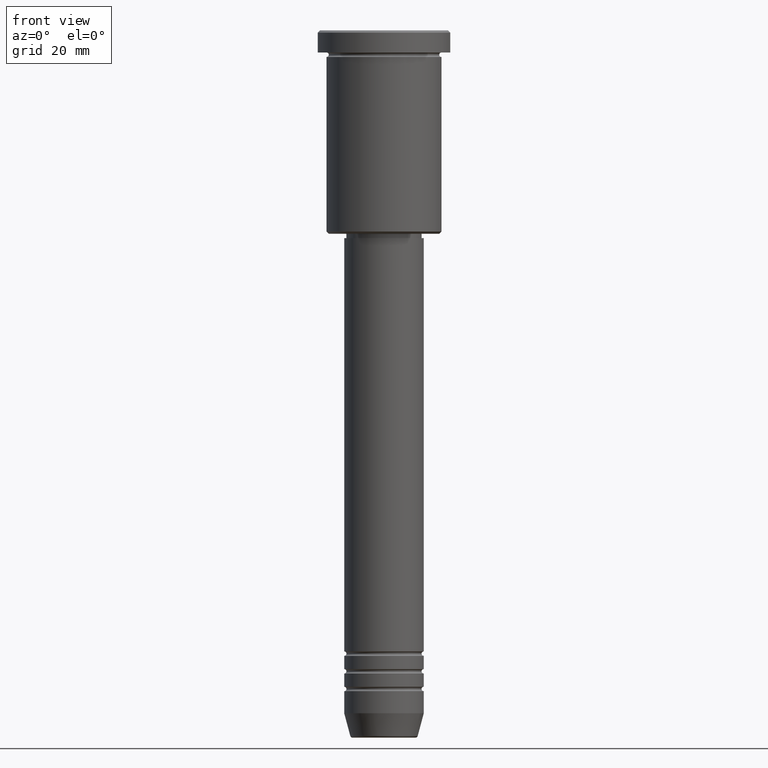
[diagram: clean part render]
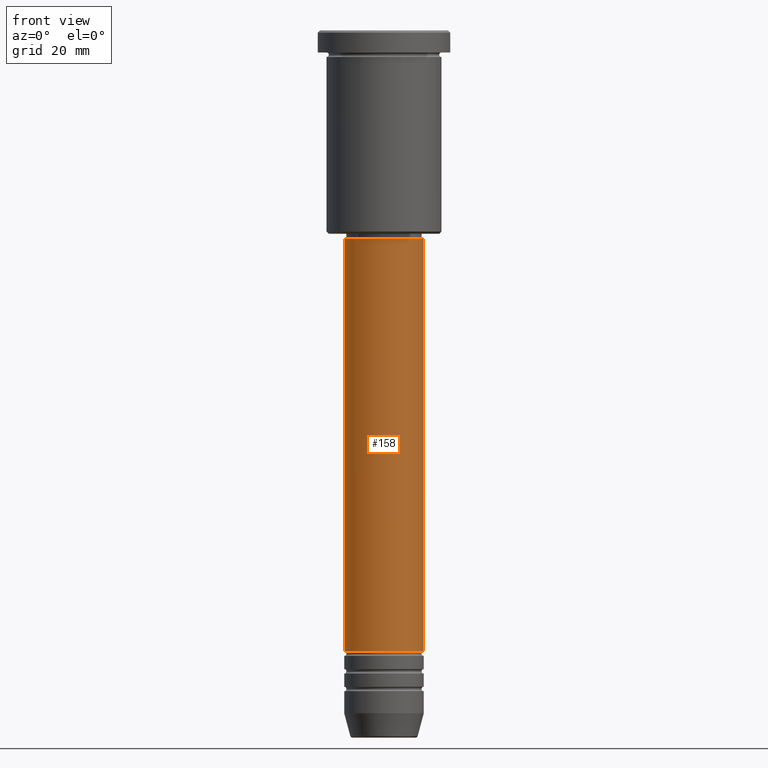
[diagram: same view with one face highlighted and labeled with its STEP entity id]
A machine part, front view. The second image highlights one B-rep face of the part: STEP entity #158.
In plain terms, the highlighted cylindrical surface (partial cylindrical patch) has radius 9 mm, axis along (-0, -0, 1).
Its self-contained STEP definition (entity closure, byte-faithful):
#8 = DIRECTION ( 'NONE',  ( -0.000000000000000000, -0.000000000000000000, 1.000000000000000000 ) ) ;
#98 = EDGE_CURVE ( 'NONE', #1082, #272, #1157, .T. ) ;
#145 = EDGE_CURVE ( 'NONE', #1082, #717, #570, .T. ) ;
#158 = ADVANCED_FACE ( 'NONE', ( #378 ), #756, .T. ) ;
#202 = ORIENTED_EDGE ( 'NONE', *, *, #952, .F. ) ;
#261 = EDGE_LOOP ( 'NONE', ( #1048, #1156, #1179, #202 ) ) ;
#272 = VERTEX_POINT ( 'NONE', #705 ) ;
#289 = VECTOR ( 'NONE', #8, 1000.000000000000000 ) ;
#300 = DIRECTION ( 'NONE',  ( 1.000000000000000000, 0.000000000000000000, 0.000000000000000000 ) ) ;
#305 = EDGE_CURVE ( 'NONE', #272, #907, #789, .T. ) ;
#327 = DIRECTION ( 'NONE',  ( -0.000000000000000000, -0.000000000000000000, 1.000000000000000000 ) ) ;
#328 = AXIS2_PLACEMENT_3D ( 'NONE', #1098, #932, #300 ) ;
#378 = FACE_OUTER_BOUND ( 'NONE', #261, .T. ) ;
#382 = AXIS2_PLACEMENT_3D ( 'NONE', #751, #920, #1093 ) ;
#386 = CIRCLE ( 'NONE', #1102, 8.999999999999998224 ) ;
#460 = CARTESIAN_POINT ( 'NONE',  ( 0.000000000000000000, 0.000000000000000000, -47.00000000000003553 ) ) ;
#570 = LINE ( 'NONE', #841, #289 ) ;
#665 = DIRECTION ( 'NONE',  ( -0.000000000000000000, -0.000000000000000000, 1.000000000000000000 ) ) ;
#705 = CARTESIAN_POINT ( 'NONE',  ( 9.000000000000001776, 0.000000000000000000, -140.5000000000000000 ) ) ;
#717 = VERTEX_POINT ( 'NONE', #1125 ) ;
#751 = CARTESIAN_POINT ( 'NONE',  ( 0.000000000000000000, 0.000000000000000000, -140.5000000000000000 ) ) ;
#756 = CYLINDRICAL_SURFACE ( 'NONE', #328, 9.000000000000000000 ) ;
#789 = LINE ( 'NONE', #1132, #833 ) ;
#833 = VECTOR ( 'NONE', #327, 1000.000000000000000 ) ;
#841 = CARTESIAN_POINT ( 'NONE',  ( -9.000000000000000000, 1.102182119232617714E-15, 0.000000000000000000 ) ) ;
#887 = CARTESIAN_POINT ( 'NONE',  ( 8.999999999999998224, 0.000000000000000000, -47.00000000000003553 ) ) ;
#907 = VERTEX_POINT ( 'NONE', #887 ) ;
#920 = DIRECTION ( 'NONE',  ( -0.000000000000000000, -0.000000000000000000, 1.000000000000000000 ) ) ;
#932 = DIRECTION ( 'NONE',  ( -0.000000000000000000, -0.000000000000000000, 1.000000000000000000 ) ) ;
#952 = EDGE_CURVE ( 'NONE', #717, #907, #386, .T. ) ;
#1048 = ORIENTED_EDGE ( 'NONE', *, *, #145, .F. ) ;
#1082 = VERTEX_POINT ( 'NONE', #1121 ) ;
#1093 = DIRECTION ( 'NONE',  ( 1.000000000000000000, 0.000000000000000000, 0.000000000000000000 ) ) ;
#1098 = CARTESIAN_POINT ( 'NONE',  ( 0.000000000000000000, 0.000000000000000000, 0.000000000000000000 ) ) ;
#1102 = AXIS2_PLACEMENT_3D ( 'NONE', #460, #665, #1103 ) ;
#1103 = DIRECTION ( 'NONE',  ( 1.000000000000000000, 0.000000000000000000, 0.000000000000000000 ) ) ;
#1121 = CARTESIAN_POINT ( 'NONE',  ( -9.000000000000001776, 1.102182119232617911E-15, -140.5000000000000000 ) ) ;
#1125 = CARTESIAN_POINT ( 'NONE',  ( -8.999999999999998224, 1.102182119232617714E-15, -47.00000000000003553 ) ) ;
#1132 = CARTESIAN_POINT ( 'NONE',  ( 9.000000000000000000, 0.000000000000000000, 0.000000000000000000 ) ) ;
#1156 = ORIENTED_EDGE ( 'NONE', *, *, #98, .T. ) ;
#1157 = CIRCLE ( 'NONE', #382, 9.000000000000001776 ) ;
#1179 = ORIENTED_EDGE ( 'NONE', *, *, #305, .T. ) ;